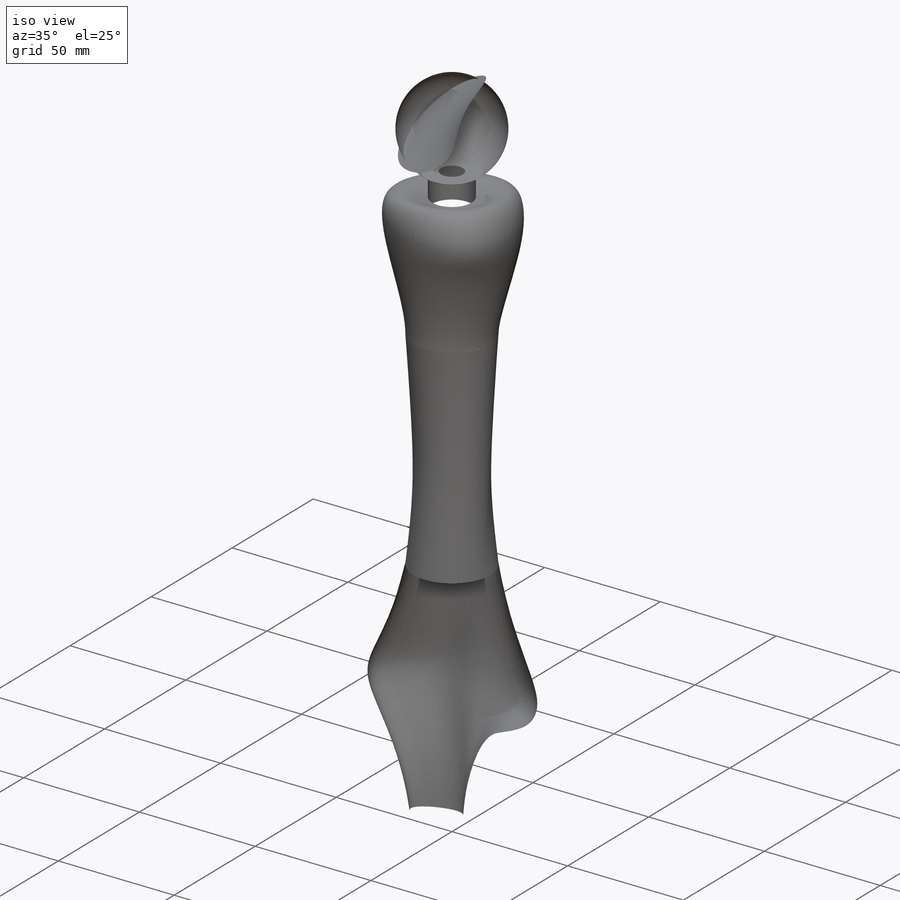
[diagram: iso view]
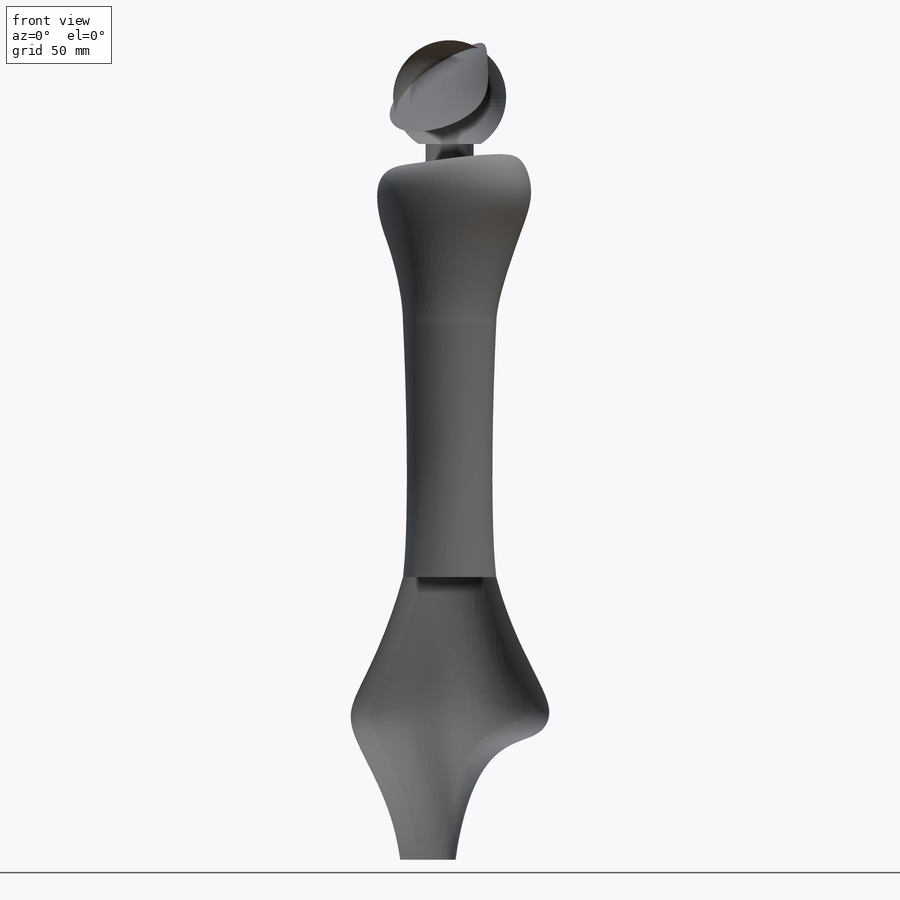
[diagram: front view]
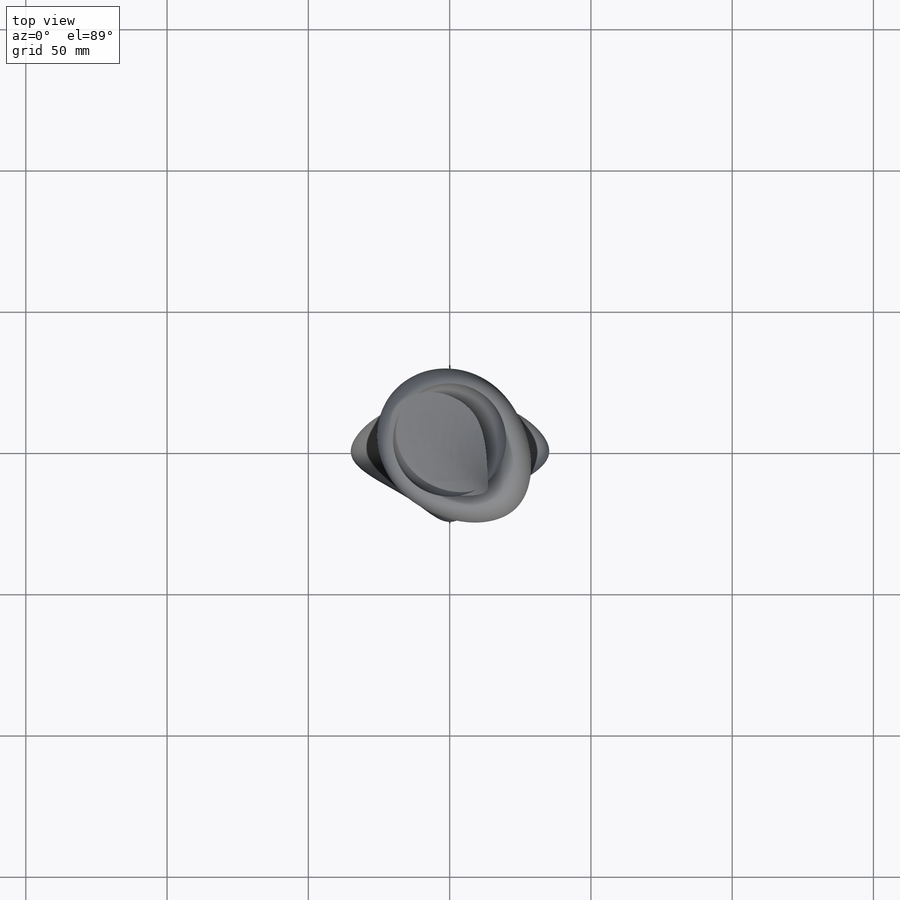
[diagram: top view]
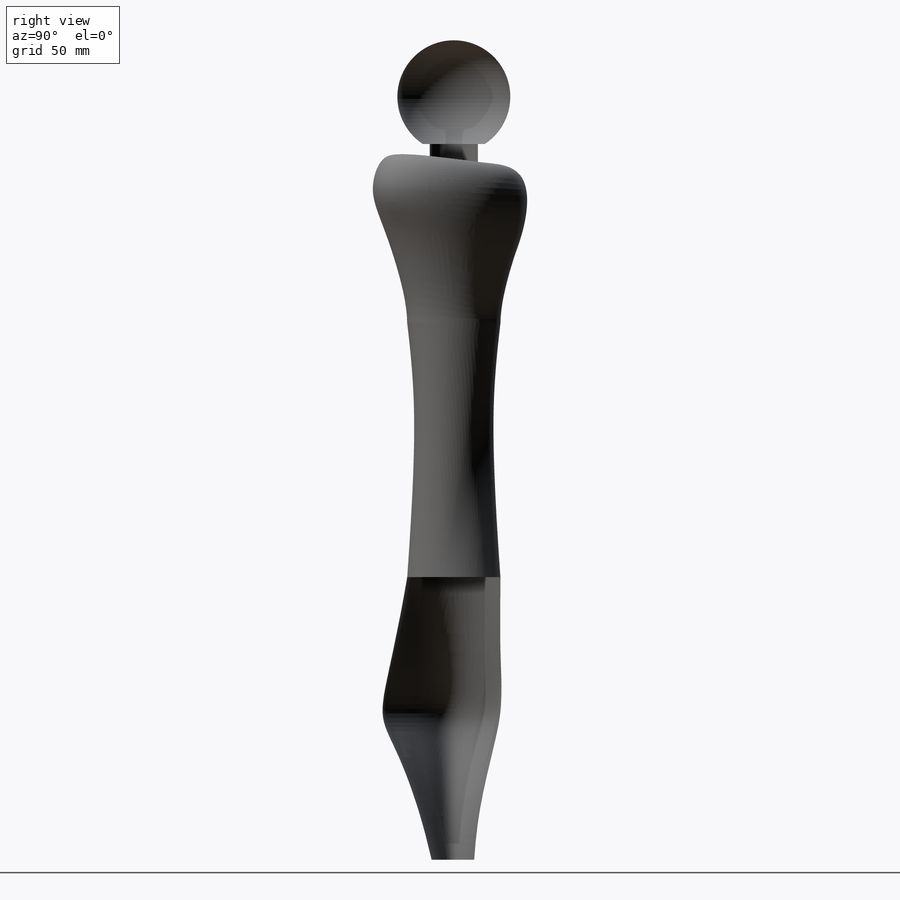
[diagram: right view]
SOLIDWORKS PART (.sldprt)
format: sldprt  version: not decoded by parser v0  size: 7,915,520 bytes
history: native  units: mm
features: sketch x82, plane x41, surface_op x2, mirror x2, material x1 + 1 further entry (+19 scaffold rows collapsed; 10 parser-record rows omitted)
feature tree (158):
  scaffold x19  (default folders/planes/origin — collapsed)
  material  "Material <nicht festgelegt>"
  plane  "Vorne"
  plane  "Oben"
  plane  "Rechts"
  sketch  "Skizze1"  dims[D2=40.0mm D1=70.0mm D3=220.0mm D4=22.0mm D5=180.0mm]
  plane  "schulter vv"
  plane  "schulter vl"
  plane  "Umlenkebene Brustkorbmuskeln"  Offset=60mm
  plane  "Ebene1"
  sketch  "Skizze3"  dims[D1=17.0mm]
  plane  "Ebene2"  Offset=10mm
  sketch  "Skizze4"
  plane  "Ebene3"  Offset=80mm
  sketch  "Skizze5"  dims[D1=33.0mm]
  plane  "Ebene7"
  plane  "Ebene5"  Offset=50mm
  plane  "Ebene8"  Offset=50mm
  sketch  "Skizze12"  dims[D1=~14.874488mm]
  parser-record x10  (decoder bookkeeping rows leaked as tree rows — omitted from the tree; the rows remain in map.json)
  surface_op  "Oberfläche-Linear austragen2"
  sketch  "Skizze6"  dims[D1=33.0mm]
  sketch  "Skizze7"  dims[D1=~33.14184mm D2=~30.762271mm D3=~20.519177mm D4=~26.38915mm]
  sketch  "Skizze8"  dims[D1=~24.261964mm D2=23.3029mm D3=~26.064103mm D4=~27.323828mm gD1=0.0deg]
  sketch  "Skizze9"  dims[c1.D1=14.0mm c1.D2=35.0mm c1.D3=6.5mm c2.D2=2.0mm c2.D4=17.5mm]
  sketch  "Skizze10"
  sketch  "Skizze11"  dims[c1.D1=25.0mm c1.D2=15.0mm c1.D3=~15.171293mm c2.D2=15.0mm]
  sketch  "Skizze93"  dims[c1.D1=25.0mm c1.D2=18.0mm c1.D3=30.0mm c1.D4=16.0mm c2.D1=~156.801409deg]
  sketch  "Skizze95"
  sketch  "Skizze6<3>"
  plane  "Ebene9"  Offset=10mm
  plane  "Ebene10"
  sketch  "Skizze15"
  sketch  "Skizze18"
  sketch  "Skizze19"
  sketch  "Skizze16"
  plane  "Ebene11"  Offset=10mm
  sketch  "Skizze20"
  sketch  "Skizze21"  dims[D1=~3.420397mm D2=~2.931769mm]
  sketch  "Skizze22"
  sketch  "Umlenkpunkte Schulter"
  sketch  "Umlenkpunkte Brustkorb"  dims[D1=43.0mm D2=20.0mm D3=48.0mm D4=9.0mm D5=27.0mm D6=52.0mm D7=52.0mm D8=27.0mm D9=61.0mm D10=40.0mm D11=40.0mm D12=61.0mm D13=0.0mm D14=54.0mm]
  sketch  "Skizze28"  dims[D1=210.0mm D2=340.0mm]
  plane  "Rückgrat vl"
  plane  "Ebene14"
  sketch  "3D-Skizze1"
  sketch  "Skizze24"  dims[c1.D1=~36.615045mm c1.D2=20.0mm c2.D1=~47.251562mm c3.D1=5.0deg c3.D2=21.0mm c3.D4=8.5mm c4.D1=~36.615045mm c5.D1=95.0deg c5.D3=10.0mm]
  sketch  "Skizze25"  dims[c1.D1=~31.050811mm c1.D3=20.0mm c2.D1=~30.071096mm c3.D1=30.0deg c3.D2=~26.765088mm c4.D2=150.0deg c4.D4=10.0mm]
  sketch  "Skizze23"  dims[c1.D2=21.0mm c1.D3=20.1mm c1.D1=200.0mm c2.D1=38.0deg c2.D2=~9.715104mm]
  sketch  "Skizze26"  dims[c1.D1=~24.686097mm c1.D3=20.0mm c2.D1=~24.686097mm c3.D1=30.0deg c3.D2=~24.686097mm c4.D2=150.0deg c4.D4=10.0mm c4.D1=0.1mm c5.D1=1.0mm c5.D2=3.0deg c6.D1=10.0mm]
  sketch  "Skizze31"  dims[c1.D1=~30.69741mm c2.D1=50.0deg c2.D2=40.0mm c3.D1=~462.166003mm c4.D1=45.0deg]
  sketch  "Skizze36"  dims[D1=2.0mm]
  sketch  "Skizze35"  dims[D1=110.0mm D2=65.0mm D3=27.0mm D4=20.0mm]
  sketch  "Skizze37"  dims[D1=10.0mm]
  sketch  "Skizze42"  dims[D1=2.0mm D2=15.0mm]
  sketch  "Skizze49"  dims[D1=12.0mm D2=12.0mm D3=12.0mm D4=12.0mm D5=8.0mm D6=7.0mm D7=7.0mm]
  sketch  "Skizze50"
  plane  "Ebene18"
  sketch  "Skizze52"
  plane  "Ebene19"
  plane  "Ebene20"
  sketch  "Skizze54"
  plane  "Ebene21"
  sketch  "Skizze55"
  sketch  "3D-Skizze11"
  sketch  "Skizze56"
  plane  "Schlüsselbeinebene"
  sketch  "Skizze57"  dims[D1=15.0mm D2=10.0mm]
  sketch  "3D-Skizze13"
  sketch  "3D-Skizze15"
  plane  "Motorgürtel"  Offset=5mm
  sketch  "Skizze58"  dims[c1.D11=~69.573763mm c1.D1=54.0mm c2.D1=20.0deg c2.D2=54.0mm c3.D2=15.0deg c3.D3=54.0mm c4.D3=25.0deg c4.D4=54.0mm c5.D4=25.0deg c5.D5=~36.261128mm c6.D5=20.0deg c6.D6=~23.181668mm c7.D6=35.0deg c7.D7=75.0mm c7.D8=30.0mm c7.D9=30.0mm c7.D10=50.0mm c7.D11=35.0mm]
  plane  "Motorgürtel 2"  Offset=30mm
  sketch  "Skizze59"
  sketch  "3D-Skizze17"
  plane  "Ebene35"
  sketch  "Skizze74"  dims[D1=44.0deg]
  plane  "Ebene23"
  sketch  "Skizze61"  dims[D1=10.0mm]
  plane  "Ebene24"
  sketch  "Skizze62"
  plane  "Ebene25"
  sketch  "Skizze63"
  plane  "Ebene26"
  sketch  "Skizze64"
  plane  "Ebene27"
  sketch  "Skizze65"
  sketch  "3D-Skizze14"
  plane  "Ebene28"
  sketch  "Skizze66"
  sketch  "3D-Skizze13<6>"
  sketch  "Skizze67"
  sketch  "3D-Skizze16"
  plane  "Ebene29"
  sketch  "Skizze68"
  plane  "Ebene30"  Offset=390mm
  sketch  "Skizze69"  dims[c1.D1=35.0mm c1.D2=45.0mm c1.D3=20.0mm c1.D4=60.0mm c1.D5=50.0mm c1.D6=45.0mm c1.D7=80.0mm c1.D8=190.0mm c1.D9=30.0mm c1.D10=340.0mm c1.D11=55.0mm c1.D12=55.0mm c1.D13=30.0mm c1.D14=35.0mm c1.D15=40.0mm c1.D16=40.0mm c1.D17=40.0mm c1.D18=40.0mm c2.D17=40.0mm c2.D19=35.0mm]
  plane  "Ebene31"
  sketch  "Skizze70"  dims[D1=35.0mm]
  plane  "Ebene32"
  sketch  "Skizze71"  dims[D1=45.0mm]
  plane  "Ebene33"
  sketch  "Skizze72"  dims[D1=50.0mm]
  plane  "Ebene34"
  sketch  "Skizze73"  dims[D1=40.0mm]
  sketch  "Skizze77"  dims[D1=210.0mm D2=80.0mm D3=50.0mm D4=180.0mm]
  sketch  "Skizze78"  dims[D1=30.0mm D2=80.0mm D3=65.0mm D4=90.0mm D5=180.0mm D6=20.0mm]
  plane  "Ebene36"
  sketch  "Skizze79"  dims[c1.D1=~5.373099mm c2.D1=25.0deg]
  sketch  "Skizze80"  dims[D1=115.0mm D2=30.0mm]
  plane  "Ebene37"
  sketch  "Skizze81"  dims[D1=~43.091562mm]
  sketch  "3D-Skizze19"
  sketch  "Motorausrichtung 1"  dims[c1.D1=~120.76352mm c2.D1=~47.517089mm c3.D1=~121.224287mm c4.D1=~83.855625mm c5.D1=~122.00786mm c6.D1=~54.409544mm c7.D1=~126.352167mm c8.D1=~47.320889mm c9.D1=~120.410613mm c10.D1=~92.660864mm c11.D1=~121.751709mm c12.D1=~179.705141mm c13.D1=~127.289314mm c14.D1=~169.433509mm]
  sketch  "Motorausrichtung 2"  dims[c1.D1=~120.203993mm c2.D1=~69.289462mm c3.D1=~50.731856mm c4.D1=~121.823544mm c5.D1=~135.004586mm c6.D1=~166.871165mm c7.D1=~102.627633mm c8.D1=~188.468488mm c9.D1=~425.519004mm c10.D1=~204.581644mm c11.D1=~82.443445mm c12.D1=~126.552891mm c13.D1=~157.888641mm c14.D1=~126.660597mm c15.D1=~122.615737mm c16.D1=~135.557149mm c17.D1=~179.296152mm c18.D1=~121.875844mm c19.D1=~746.623464mm c20.D1=~157.093816mm c21.D1=~62.287159mm c22.D1=~128.285315mm c23.D1=~245.408834mm c24.D1=~137.811934mm c25.D1=~109.363622mm c26.D1=~87.986535mm c27.D1=~58.539166mm c28.D1=~62.71874mm c29.D1=~46.720959mm c30.D1=~128.76414mm c31.D1=~60.806998mm c32.D1=~50.877468mm c33.D1=~88.221103mm c34.D1=~94.802312mm c35.D1=~62.184297mm c36.D1=~187.146197mm c37.D1=~99.00965mm c38.D1=15.0mm c38.D2=40.0mm c38.D3=~54.964174mm c39.D3=30.0mm c39.D4=42.0mm c39.D5=40.0mm c39.D6=40.0mm c39.D7=35.0mm c39.D8=40.0mm c39.D9=~40.446307mm c39.D11=50.0mm c39.D10=40.0mm c40.D9=40.0mm c40.D11=40.0mm c40.D12=26.0mm c40.D13=38.0mm c40.D14=38.0mm c40.D15=~5.400059mm c41.D15=15.0mm c41.D16=~121.951747mm c41.D17=121.0mm c42.D16=~121.951747mm c42.D23=~121.951747mm c42.D17=~15.656439mm c43.D17=~17.436814mm c44.D17=12.0mm c44.D18=~3.827501mm c45.D18=12.0mm c46.D18=80.0deg c46.D19=~6.161606mm c47.D19=16.0mm c47.D20=~14.656857mm c48.D20=~14.681401mm c49.D20=90.0deg c49.D21=35.0mm c49.D22=20.0mm c49.D23=3.4839mm]
  sketch  "Skizze51"  dims[c1.D1=190.0mm c1.D2=1250.0mm c1.D3=850.0mm c1.D4=~259.830717mm c2.D4=102.5deg c2.D5=200.0mm c2.D6=180.0mm c2.D7=~180.072716mm c3.D7=170.0deg]
  mirror  "Spiegeln1"
  sketch  "Skizze83"  dims[c1.D1=~133.462716mm c1.D2=~200.165558mm c2.D1=140.0mm c2.D2=280.0mm c2.D3=90.0mm c2.D4=150.0mm]
  plane  "Ebene38"  Offset=80mm
  sketch  "Skizze84"  dims[D1=10.0mm]
  plane  "Ebene39"
  sketch  "Skizze85"  dims[c1.D1=~12.671975mm c2.D1=30.0deg c2.D2=40.0mm c2.D3=5.0mm c2.D4=10.0mm c2.D5=45.0mm c2.D6=25.0mm c2.D7=10.0mm c3.D7=110.0deg c3.D8=5.0mm]
  mirror  "Oberflächenausfüllung2"
  sketch  "Skizze86"  dims[D1=30.0mm]
  surface_op  "Oberfläche-Linear austragen3"
  sketch  "Skizze87"  dims[D1=35.0mm D2=38.0mm D3=32.0mm D4=35.0mm D5=35.0mm D6=35.0mm D7=35.0mm D8=35.0mm D9=35.0mm D10=30.0mm D11=30.0mm D12=25.0mm D13=25.0mm D14=20.0mm D15=20.0mm D16=3.0mm D17=3.0mm]
  sketch  "Skizze90"  dims[c1.D1=6.0mm c1.D2=~4.017958mm c2.D1=8.0mm]
  sketch  "Skizze91"  dims[c1.D1=150.0mm c1.D2=~30.083337mm c2.D1=10.0mm c2.D2=~33.918316mm c3.D2=35.0deg c3.D3=40.0deg c3.D4=58.0deg c3.D5=~52.059034mm c4.D5=100.0deg c4.D6=~54.745326mm c5.D6=100.0deg c5.D7=~44.704321mm c6.D7=70.0deg c6.D8=~23.969944mm c7.D8=80.0deg c7.D9=40.0deg]
  sketch  "Skizze92"  dims[D1=30.0mm D2=25.0mm]
  sketch  "Skizze94"  dims[c1.D1=600.0mm c1.D2=300.0mm c1.D3=~46.046596mm c2.D3=~5.418349deg c3.D3=~46.046596mm c4.D3=~174.581651deg c5.D3=150.0mm c5.D4=120.0mm]
  "Abmessung RP-Maschine 1zu1 "
decode coverage: 49 of 86 modeling features carry decoded parameters; 1 rows unclassified (native names shown)
note: ~ marks probable driven/reference dimensions
note: suppression state not decoded; provenance and decode notes live in map.json
